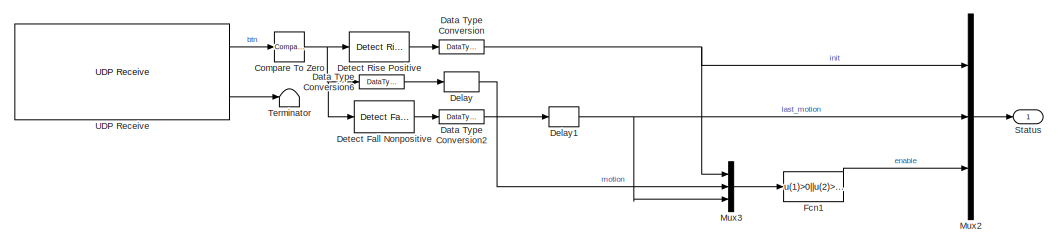
[diagram: root canvas - part 1/2, full width, top band]
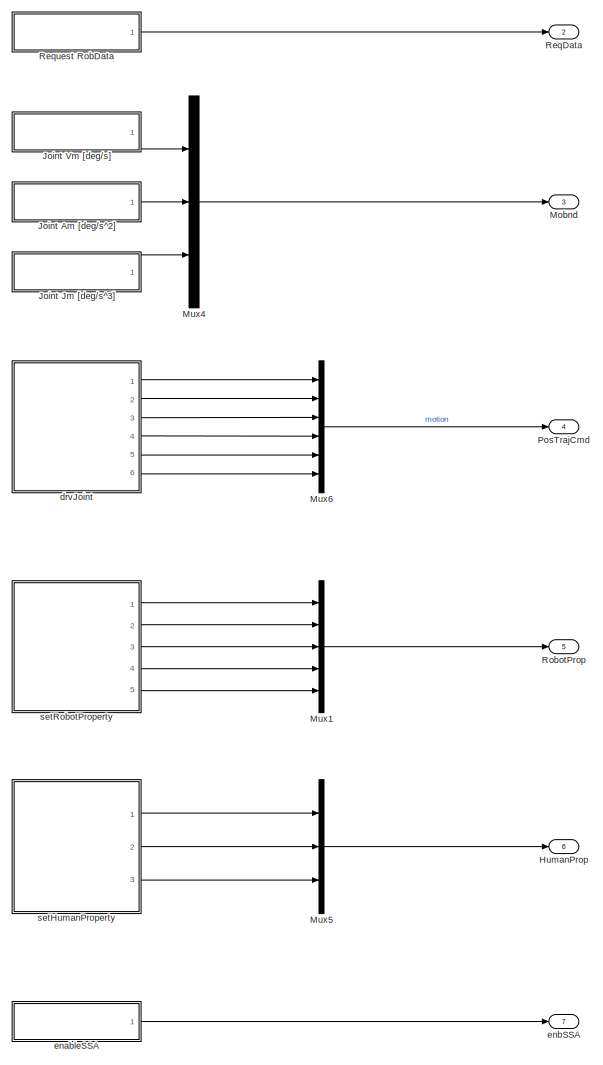
[diagram: root canvas - part 2/2, left side, full height]
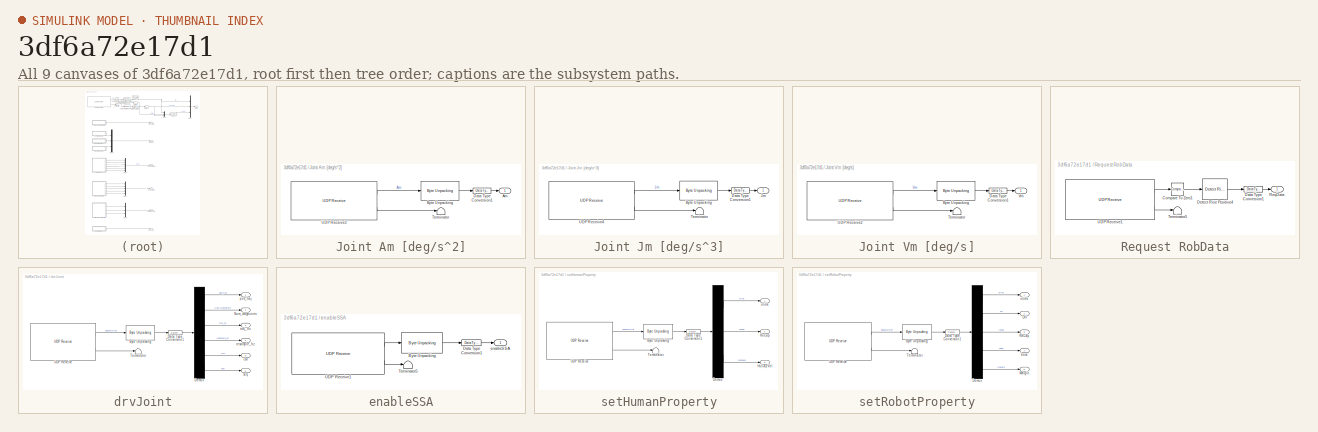
[diagram: thumbnail index - all 9 canvases of the model, root first then tree order]
MODEL slx_3df6a72e17d1
KIND model
CONFIG AbsTol = auto
CONFIG EnableMultiTasking = off
CONFIG FixedStep = auto
CONFIG MaxStep = auto
CONFIG MinStep = auto
CONFIG RelTol = 1e-3
CONFIG SampleTimeConstraint = Unconstrained
CONFIG SolverName = FixedStepAuto
CONFIG StartTime = 0.0
CONFIG StopTime = 10.0
BLOCK [Reference] Compare To Zero  REF=simulink/Logic and Bit
Operations/Compare
To Zero
  Ports = [1, 1]
  SourceBlock = simulink/Logic and Bit\nOperations/Compare\nTo Zero
  SourceProductBaseCode = SL
  SourceType = Compare To Zero
BLOCK [DataTypeConversion] Data Type Conversion
  OutDataTypeStr = double
  RndMeth = Floor
  SaturateOnIntegerOverflow = off
BLOCK [DataTypeConversion] Data Type Conversion2
  OutDataTypeStr = double
  RndMeth = Floor
  SaturateOnIntegerOverflow = off
BLOCK [DataTypeConversion] Data Type Conversion6
  OutDataTypeStr = double
  RndMeth = Floor
  SaturateOnIntegerOverflow = off
BLOCK [Delay] Delay
  DelayLength = 1
  InitialCondition = 0
  InputPortMap = u0
  Ports = [1, 1]
BLOCK [Delay] Delay1
  DelayLength = 1
  InitialCondition = 0
  InputPortMap = u0
  Ports = [1, 1]
BLOCK [Reference] Detect Fall Nonpositive  REF=simulink/Logic and Bit
Operations/Detect Fall
Nonpositive
  Ports = [1, 1]
  SourceBlock = simulink/Logic and Bit\nOperations/Detect Fall\nNonpositive
  SourceProductBaseCode = SL
  SourceType = Detect Fall Nonpositive
BLOCK [Reference] Detect Rise Positive  REF=simulink/Logic and Bit
Operations/Detect Rise
Positive
  Ports = [1, 1]
  SourceBlock = simulink/Logic and Bit\nOperations/Detect Rise\nPositive
  SourceProductBaseCode = SL
  SourceType = Detect Rise Positive
BLOCK [Fcn] Fcn1
  Expr = u(1)>0||u(2)>0||u(3)>0
BLOCK [Outport] HumanProp
  Port = 6
  VectorParamsAs1DForOutWhenUnconnected = off
BLOCK [SubSystem] Joint Am [deg//s^2]
  Ports = [0, 1]
  RequestExecContextInheritance = off
BLOCK [Outport] Joint Am [deg//s^2]/Am
  VectorParamsAs1DForOutWhenUnconnected = off
BLOCK [Reference] Joint Am [deg//s^2]/Byte Unpacking   REF=slrealtimeutilitieslib/Byte Unpacking
  Ports = [1, 1]
  SourceBlock = slrealtimeutilitieslib/Byte Unpacking
  SourceProductBaseCode = XP
  SourceType = slreraltimebytepacking
BLOCK [DataTypeConversion] Joint Am [deg//s^2]/Data Type Conversion1
  OutDataTypeStr = double
  RndMeth = Floor
  SaturateOnIntegerOverflow = off
BLOCK [Terminator] Joint Am [deg//s^2]/Terminator
BLOCK [Reference] Joint Am [deg//s^2]/UDP Receive3  REF=slrealtimeiplib/UDP Receive
  Ports = [0, 2]
  SourceBlock = slrealtimeiplib/UDP Receive
  SourceProductBaseCode = XP
  SourceType = slrealtimeudpreceive
BLOCK [SubSystem] Joint Jm [deg//s^3]
  Ports = [0, 1]
  RequestExecContextInheritance = off
BLOCK [Reference] Joint Jm [deg//s^3]/Byte Unpacking   REF=slrealtimeutilitieslib/Byte Unpacking
  Ports = [1, 1]
  SourceBlock = slrealtimeutilitieslib/Byte Unpacking
  SourceProductBaseCode = XP
  SourceType = slreraltimebytepacking
BLOCK [DataTypeConversion] Joint Jm [deg//s^3]/Data Type Conversion1
  OutDataTypeStr = double
  RndMeth = Floor
  SaturateOnIntegerOverflow = off
BLOCK [Outport] Joint Jm [deg//s^3]/Jm
  VectorParamsAs1DForOutWhenUnconnected = off
BLOCK [Terminator] Joint Jm [deg//s^3]/Terminator
BLOCK [Reference] Joint Jm [deg//s^3]/UDP Receive4  REF=slrealtimeiplib/UDP Receive
  Ports = [0, 2]
  SourceBlock = slrealtimeiplib/UDP Receive
  SourceProductBaseCode = XP
  SourceType = slrealtimeudpreceive
BLOCK [SubSystem] Joint Vm [deg//s]
  Ports = [0, 1]
  RequestExecContextInheritance = off
BLOCK [Reference] Joint Vm [deg//s]/Byte Unpacking   REF=slrealtimeutilitieslib/Byte Unpacking
  Ports = [1, 1]
  SourceBlock = slrealtimeutilitieslib/Byte Unpacking
  SourceProductBaseCode = XP
  SourceType = slreraltimebytepacking
BLOCK [DataTypeConversion] Joint Vm [deg//s]/Data Type Conversion1
  OutDataTypeStr = double
  RndMeth = Floor
  SaturateOnIntegerOverflow = off
BLOCK [Terminator] Joint Vm [deg//s]/Terminator
BLOCK [Reference] Joint Vm [deg//s]/UDP Receive2  REF=slrealtimeiplib/UDP Receive
  Ports = [0, 2]
  SourceBlock = slrealtimeiplib/UDP Receive
  SourceProductBaseCode = XP
  SourceType = slrealtimeudpreceive
BLOCK [Outport] Joint Vm [deg//s]/Vm
  VectorParamsAs1DForOutWhenUnconnected = off
BLOCK [Outport] Mobnd
  Port = 3
  VectorParamsAs1DForOutWhenUnconnected = off
BLOCK [Mux] Mux1
  DisplayOption = bar
  Inputs = [1,40,70,3,1]
  Ports = [5, 1]
BLOCK [Mux] Mux2
  DisplayOption = bar
  Inputs = 3
  Ports = [3, 1]
BLOCK [Mux] Mux3
  DisplayOption = bar
  Inputs = 3
  Ports = [3, 1]
BLOCK [Mux] Mux4
  DisplayOption = bar
  Inputs = 3
  Ports = [3, 1]
BLOCK [Mux] Mux5
  DisplayOption = bar
  Inputs = [1,70,60]
  Ports = [3, 1]
BLOCK [Mux] Mux6
  DisplayOption = bar
  Inputs = [11250,1,1,1,1,1]
  Ports = [6, 1]
BLOCK [Outport] PosTrajCmd
  Port = 4
  VectorParamsAs1DForOutWhenUnconnected = off
BLOCK [Outport] ReqData
  Port = 2
  VectorParamsAs1DForOutWhenUnconnected = off
BLOCK [SubSystem] Request RobData
  Ports = [0, 1]
  RequestExecContextInheritance = off
BLOCK [Reference] Request RobData/Compare To Zero1  REF=simulink/Logic and Bit
Operations/Compare
To Zero
  Ports = [1, 1]
  SourceBlock = simulink/Logic and Bit\nOperations/Compare\nTo Zero
  SourceProductBaseCode = SL
  SourceType = Compare To Zero
BLOCK [DataTypeConversion] Request RobData/Data Type Conversion1
  OutDataTypeStr = double
  RndMeth = Floor
  SaturateOnIntegerOverflow = off
BLOCK [Reference] Request RobData/Detect Rise Positive4  REF=simulink/Logic and Bit
Operations/Detect Rise
Positive
  Ports = [1, 1]
  SourceBlock = simulink/Logic and Bit\nOperations/Detect Rise\nPositive
  SourceProductBaseCode = SL
  SourceType = Detect Rise Positive
BLOCK [Outport] Request RobData/ReqData
  VectorParamsAs1DForOutWhenUnconnected = off
BLOCK [Terminator] Request RobData/Terminator5
BLOCK [Reference] Request RobData/UDP Receive1  REF=slrealtimeiplib/UDP Receive
  Ports = [0, 2]
  SourceBlock = slrealtimeiplib/UDP Receive
  SourceProductBaseCode = XP
  SourceType = slrealtimeudpreceive
BLOCK [Outport] RobotProp
  Port = 5
  VectorParamsAs1DForOutWhenUnconnected = off
BLOCK [Outport] Status
  VectorParamsAs1DForOutWhenUnconnected = off
BLOCK [Terminator] Terminator
BLOCK [Reference] UDP Receive  REF=slrealtimeiplib/UDP Receive
  Ports = [0, 2]
  SourceBlock = slrealtimeiplib/UDP Receive
  SourceProductBaseCode = XP
  SourceType = slrealtimeudpreceive
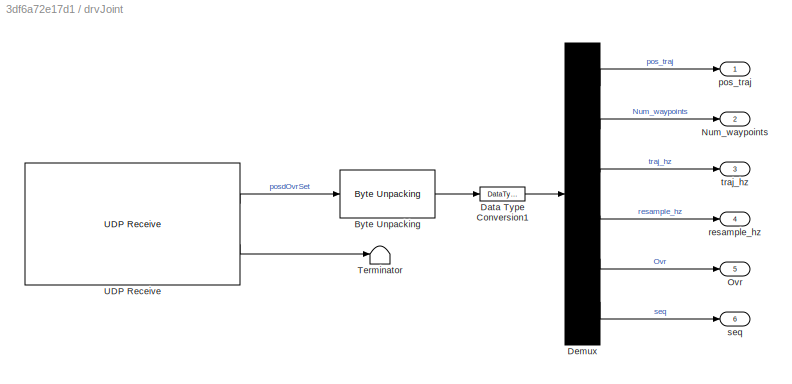
BLOCK [SubSystem] drvJoint
  Ports = [0, 6]
  RequestExecContextInheritance = off
BLOCK [Reference] drvJoint/Byte Unpacking   REF=slrealtimeutilitieslib/Byte Unpacking
  Ports = [1, 1]
  SourceBlock = slrealtimeutilitieslib/Byte Unpacking
  SourceProductBaseCode = XP
  SourceType = slreraltimebytepacking
BLOCK [DataTypeConversion] drvJoint/Data Type Conversion1
  OutDataTypeStr = double
  RndMeth = Floor
  SaturateOnIntegerOverflow = off
BLOCK [Demux] drvJoint/Demux
  DisplayOption = none
  Outputs = [11250,1,1,1,1,1]
  Ports = [1, 6]
BLOCK [Outport] drvJoint/Num_waypoints
  Port = 2
  VectorParamsAs1DForOutWhenUnconnected = off
BLOCK [Outport] drvJoint/Ovr
  Port = 5
  VectorParamsAs1DForOutWhenUnconnected = off
BLOCK [Terminator] drvJoint/Terminator
BLOCK [Reference] drvJoint/UDP Receive  REF=slrealtimeiplib/UDP Receive
  Ports = [0, 2]
  SourceBlock = slrealtimeiplib/UDP Receive
  SourceProductBaseCode = XP
  SourceType = slrealtimeudpreceive
BLOCK [Outport] drvJoint/pos_traj
  VectorParamsAs1DForOutWhenUnconnected = off
BLOCK [Outport] drvJoint/resample_hz
  Port = 4
  VectorParamsAs1DForOutWhenUnconnected = off
BLOCK [Outport] drvJoint/seq
  Port = 6
  VectorParamsAs1DForOutWhenUnconnected = off
BLOCK [Outport] drvJoint/traj_hz
  Port = 3
  VectorParamsAs1DForOutWhenUnconnected = off
BLOCK [SubSystem] enableSSA
  Ports = [0, 1]
  RequestExecContextInheritance = off
BLOCK [Reference] enableSSA/Byte Unpacking   REF=slrealtimeutilitieslib/Byte Unpacking
  Ports = [1, 1]
  SourceBlock = slrealtimeutilitieslib/Byte Unpacking
  SourceProductBaseCode = XP
  SourceType = slreraltimebytepacking
BLOCK [DataTypeConversion] enableSSA/Data Type Conversion1
  OutDataTypeStr = double
  RndMeth = Floor
  SaturateOnIntegerOverflow = off
BLOCK [Terminator] enableSSA/Terminator5
BLOCK [Reference] enableSSA/UDP Receive1  REF=slrealtimeiplib/UDP Receive
  Ports = [0, 2]
  SourceBlock = slrealtimeiplib/UDP Receive
  SourceProductBaseCode = XP
  SourceType = slrealtimeudpreceive
BLOCK [Outport] enableSSA/enableSSA
  VectorParamsAs1DForOutWhenUnconnected = off
BLOCK [Outport] enbSSA
  Port = 7
  VectorParamsAs1DForOutWhenUnconnected = off
BLOCK [SubSystem] setHumanProperty
  Ports = [0, 3]
  RequestExecContextInheritance = off
BLOCK [Reference] setHumanProperty/Byte Unpacking   REF=slrealtimeutilitieslib/Byte Unpacking
  Ports = [1, 1]
  SourceBlock = slrealtimeutilitieslib/Byte Unpacking
  SourceProductBaseCode = XP
  SourceType = slreraltimebytepacking
BLOCK [DataTypeConversion] setHumanProperty/Data Type Conversion1
  OutDataTypeStr = double
  RndMeth = Floor
  SaturateOnIntegerOverflow = off
BLOCK [Demux] setHumanProperty/Demux
  DisplayOption = none
  Outputs = [1,70,60]
  Ports = [1, 3]
BLOCK [Outport] setHumanProperty/HuCap
  Port = 2
  VectorParamsAs1DForOutWhenUnconnected = off
BLOCK [Outport] setHumanProperty/HuCapVel
  Port = 3
  VectorParamsAs1DForOutWhenUnconnected = off
BLOCK [Terminator] setHumanProperty/Terminator
BLOCK [Reference] setHumanProperty/UDP Receive  REF=slrealtimeiplib/UDP Receive
  Ports = [0, 2]
  SourceBlock = slrealtimeiplib/UDP Receive
  SourceProductBaseCode = XP
  SourceType = slrealtimeudpreceive
BLOCK [Outport] setHumanProperty/nlink
  VectorParamsAs1DForOutWhenUnconnected = off
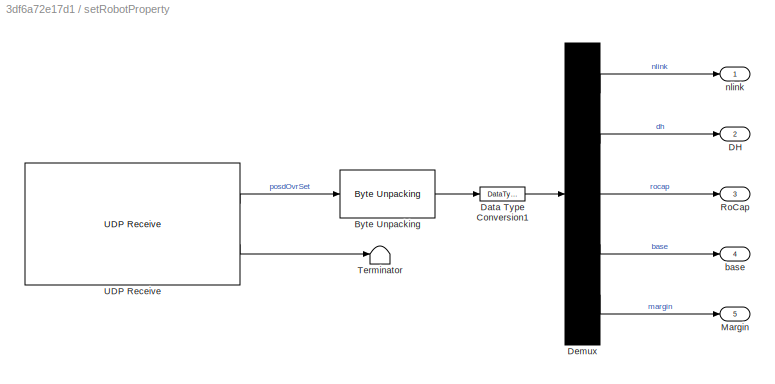
BLOCK [SubSystem] setRobotProperty
  Ports = [0, 5]
  RequestExecContextInheritance = off
BLOCK [Reference] setRobotProperty/Byte Unpacking   REF=slrealtimeutilitieslib/Byte Unpacking
  Ports = [1, 1]
  SourceBlock = slrealtimeutilitieslib/Byte Unpacking
  SourceProductBaseCode = XP
  SourceType = slreraltimebytepacking
BLOCK [Outport] setRobotProperty/DH
  Port = 2
  VectorParamsAs1DForOutWhenUnconnected = off
BLOCK [DataTypeConversion] setRobotProperty/Data Type Conversion1
  OutDataTypeStr = double
  RndMeth = Floor
  SaturateOnIntegerOverflow = off
BLOCK [Demux] setRobotProperty/Demux
  DisplayOption = none
  Outputs = [1,40,70,3,1]
  Ports = [1, 5]
BLOCK [Outport] setRobotProperty/Margin
  Port = 5
  VectorParamsAs1DForOutWhenUnconnected = off
BLOCK [Outport] setRobotProperty/RoCap
  Port = 3
  VectorParamsAs1DForOutWhenUnconnected = off
BLOCK [Terminator] setRobotProperty/Terminator
BLOCK [Reference] setRobotProperty/UDP Receive  REF=slrealtimeiplib/UDP Receive
  Ports = [0, 2]
  SourceBlock = slrealtimeiplib/UDP Receive
  SourceProductBaseCode = XP
  SourceType = slrealtimeudpreceive
BLOCK [Outport] setRobotProperty/base
  Port = 4
  VectorParamsAs1DForOutWhenUnconnected = off
BLOCK [Outport] setRobotProperty/nlink
  VectorParamsAs1DForOutWhenUnconnected = off
NET Compare To Zero:1 -> Data Type Conversion6:1, Detect Fall Nonpositive:1, Detect Rise Positive:1
LINE Data Type Conversion2:1 -> Delay1:1
LINE Data Type Conversion6:1 -> Delay:1
NET Data Type Conversion:1 -> Mux2:1, Mux3:1
NET Delay1:1 -> Mux2:2, Mux3:3
LINE Delay:1 -> Mux3:2
LINE Detect Fall Nonpositive:1 -> Data Type Conversion2:1
LINE Detect Rise Positive:1 -> Data Type Conversion:1
LINE Fcn1:1 -> Mux2:3
LINE Joint Am [deg//s^2]/Byte Unpacking :1 -> Joint Am [deg//s^2]/Data Type Conversion1:1
LINE Joint Am [deg//s^2]/Data Type Conversion1:1 -> Joint Am [deg//s^2]/Am:1
LINE Joint Am [deg//s^2]/UDP Receive3:1 -> Joint Am [deg//s^2]/Byte Unpacking :1
LINE Joint Am [deg//s^2]/UDP Receive3:2 -> Joint Am [deg//s^2]/Terminator:1
LINE Joint Am [deg//s^2]:1 -> Mux4:2
LINE Joint Jm [deg//s^3]/Byte Unpacking :1 -> Joint Jm [deg//s^3]/Data Type Conversion1:1
LINE Joint Jm [deg//s^3]/Data Type Conversion1:1 -> Joint Jm [deg//s^3]/Jm:1
LINE Joint Jm [deg//s^3]/UDP Receive4:1 -> Joint Jm [deg//s^3]/Byte Unpacking :1
LINE Joint Jm [deg//s^3]/UDP Receive4:2 -> Joint Jm [deg//s^3]/Terminator:1
LINE Joint Jm [deg//s^3]:1 -> Mux4:3
LINE Joint Vm [deg//s]/Byte Unpacking :1 -> Joint Vm [deg//s]/Data Type Conversion1:1
LINE Joint Vm [deg//s]/Data Type Conversion1:1 -> Joint Vm [deg//s]/Vm:1
LINE Joint Vm [deg//s]/UDP Receive2:1 -> Joint Vm [deg//s]/Byte Unpacking :1
LINE Joint Vm [deg//s]/UDP Receive2:2 -> Joint Vm [deg//s]/Terminator:1
LINE Joint Vm [deg//s]:1 -> Mux4:1
LINE Mux1:1 -> RobotProp:1
LINE Mux2:1 -> Status:1
LINE Mux3:1 -> Fcn1:1
LINE Mux4:1 -> Mobnd:1
LINE Mux5:1 -> HumanProp:1
LINE Mux6:1 -> PosTrajCmd:1
LINE Request RobData/Compare To Zero1:1 -> Request RobData/Detect Rise Positive4:1
LINE Request RobData/Data Type Conversion1:1 -> Request RobData/ReqData:1
LINE Request RobData/Detect Rise Positive4:1 -> Request RobData/Data Type Conversion1:1
LINE Request RobData/UDP Receive1:1 -> Request RobData/Compare To Zero1:1
LINE Request RobData/UDP Receive1:2 -> Request RobData/Terminator5:1
LINE Request RobData:1 -> ReqData:1
LINE UDP Receive:1 -> Compare To Zero:1
LINE UDP Receive:2 -> Terminator:1
LINE drvJoint/Byte Unpacking :1 -> drvJoint/Data Type Conversion1:1
LINE drvJoint/Data Type Conversion1:1 -> drvJoint/Demux:1
LINE drvJoint/Demux:1 -> drvJoint/pos_traj:1
LINE drvJoint/Demux:2 -> drvJoint/Num_waypoints:1
LINE drvJoint/Demux:3 -> drvJoint/traj_hz:1
LINE drvJoint/Demux:4 -> drvJoint/resample_hz:1
LINE drvJoint/Demux:5 -> drvJoint/Ovr:1
LINE drvJoint/Demux:6 -> drvJoint/seq:1
LINE drvJoint/UDP Receive:1 -> drvJoint/Byte Unpacking :1
LINE drvJoint/UDP Receive:2 -> drvJoint/Terminator:1
LINE drvJoint:1 -> Mux6:1
LINE drvJoint:2 -> Mux6:2
LINE drvJoint:3 -> Mux6:3
LINE drvJoint:4 -> Mux6:4
LINE drvJoint:5 -> Mux6:5
LINE drvJoint:6 -> Mux6:6
LINE enableSSA/Byte Unpacking :1 -> enableSSA/Data Type Conversion1:1
LINE enableSSA/Data Type Conversion1:1 -> enableSSA/enableSSA:1
LINE enableSSA/UDP Receive1:1 -> enableSSA/Byte Unpacking :1
LINE enableSSA/UDP Receive1:2 -> enableSSA/Terminator5:1
LINE enableSSA:1 -> enbSSA:1
LINE setHumanProperty/Byte Unpacking :1 -> setHumanProperty/Data Type Conversion1:1
LINE setHumanProperty/Data Type Conversion1:1 -> setHumanProperty/Demux:1
LINE setHumanProperty/Demux:1 -> setHumanProperty/nlink:1
LINE setHumanProperty/Demux:2 -> setHumanProperty/HuCap:1
LINE setHumanProperty/Demux:3 -> setHumanProperty/HuCapVel:1
LINE setHumanProperty/UDP Receive:1 -> setHumanProperty/Byte Unpacking :1
LINE setHumanProperty/UDP Receive:2 -> setHumanProperty/Terminator:1
LINE setHumanProperty:1 -> Mux5:1
LINE setHumanProperty:2 -> Mux5:2
LINE setHumanProperty:3 -> Mux5:3
LINE setRobotProperty/Byte Unpacking :1 -> setRobotProperty/Data Type Conversion1:1
LINE setRobotProperty/Data Type Conversion1:1 -> setRobotProperty/Demux:1
LINE setRobotProperty/Demux:1 -> setRobotProperty/nlink:1
LINE setRobotProperty/Demux:2 -> setRobotProperty/DH:1
LINE setRobotProperty/Demux:3 -> setRobotProperty/RoCap:1
LINE setRobotProperty/Demux:4 -> setRobotProperty/base:1
LINE setRobotProperty/Demux:5 -> setRobotProperty/Margin:1
LINE setRobotProperty/UDP Receive:1 -> setRobotProperty/Byte Unpacking :1
LINE setRobotProperty/UDP Receive:2 -> setRobotProperty/Terminator:1
LINE setRobotProperty:1 -> Mux1:1
LINE setRobotProperty:2 -> Mux1:2
LINE setRobotProperty:3 -> Mux1:3
LINE setRobotProperty:4 -> Mux1:4
LINE setRobotProperty:5 -> Mux1:5
note: NET lines group one-source signal fan-out (src -> all destinations, sorted); 1:1 wires keep LINE
